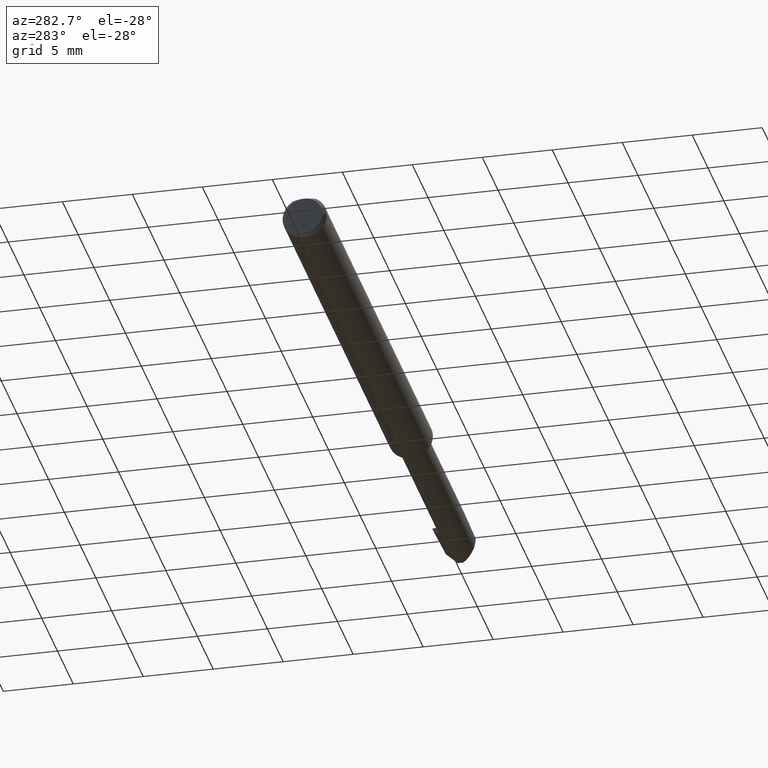
[diagram: clean part render]
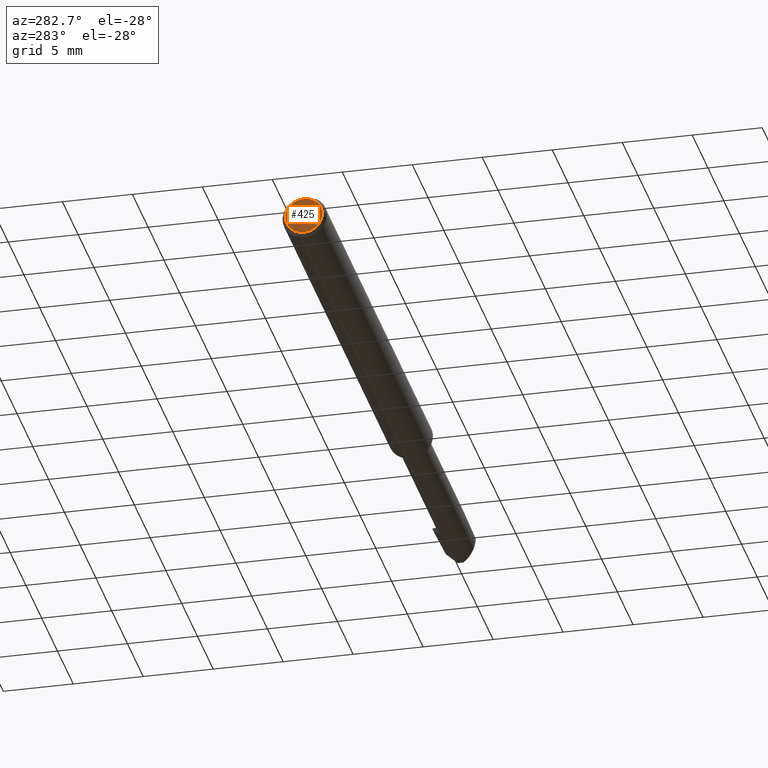
[diagram: same view with one face highlighted and labeled with its STEP entity id]
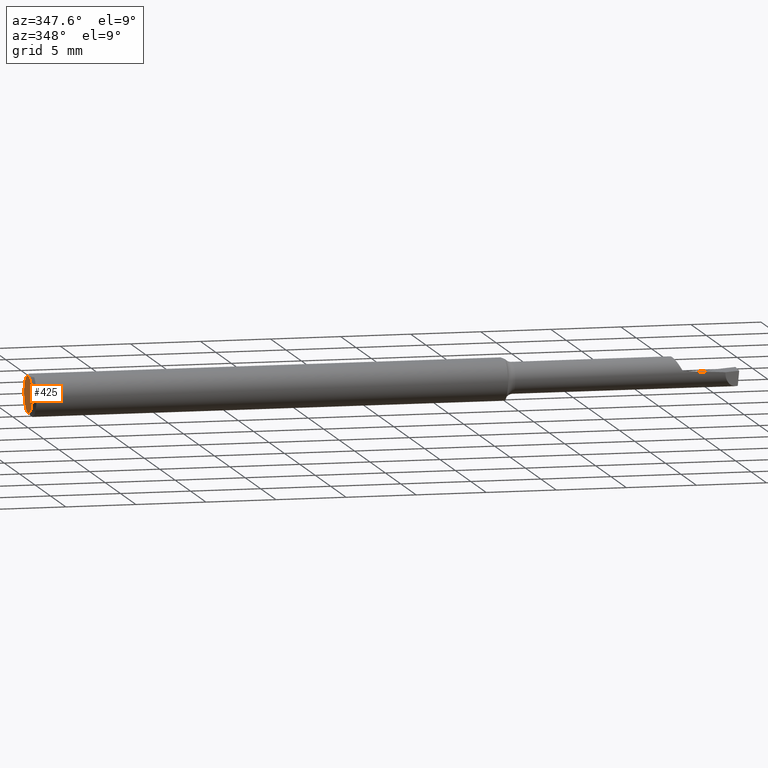
[diagram: same view with one face highlighted and labeled with its STEP entity id]
A machine part, auxiliary view. The second image highlights one B-rep face of the part: STEP entity #425.
A second angle (auxiliary view) of the same face is appended — the face is thin or edge-on in the first view.
In plain terms, the highlighted planar face has unit normal (1, 0, 0).
Its self-contained STEP definition (entity closure, byte-faithful):
#137 = VERTEX_POINT ( 'NONE', #215 ) ;
#187 = FACE_OUTER_BOUND ( 'NONE', #442, .T. ) ;
#191 = AXIS2_PLACEMENT_3D ( 'NONE', #310, #842, #245 ) ;
#215 = CARTESIAN_POINT ( 'NONE',  ( 0.000000000000000000, -5.426997665009263557E-18, 0.05234999999999997988 ) ) ;
#219 = AXIS2_PLACEMENT_3D ( 'NONE', #675, #743, #794 ) ;
#243 = ORIENTED_EDGE ( 'NONE', *, *, #532, .T. ) ;
#245 = DIRECTION ( 'NONE',  ( 0.000000000000000000, 0.000000000000000000, 1.000000000000000000 ) ) ;
#310 = CARTESIAN_POINT ( 'NONE',  ( 0.000000000000000000, 0.000000000000000000, 0.000000000000000000 ) ) ;
#348 = CIRCLE ( 'NONE', #493, 0.05234999999999996600 ) ;
#386 = PLANE ( 'NONE',  #219 ) ;
#407 = CIRCLE ( 'NONE', #191, 0.05234999999999996600 ) ;
#425 = ADVANCED_FACE ( 'NONE', ( #187 ), #386, .F. ) ;
#442 = EDGE_LOOP ( 'NONE', ( #243, #446 ) ) ;
#446 = ORIENTED_EDGE ( 'NONE', *, *, #683, .T. ) ;
#493 = AXIS2_PLACEMENT_3D ( 'NONE', #671, #606, #868 ) ;
#532 = EDGE_CURVE ( 'NONE', #137, #863, #407, .T. ) ;
#606 = DIRECTION ( 'NONE',  ( -1.000000000000000000, -0.000000000000000000, -0.000000000000000000 ) ) ;
#619 = CARTESIAN_POINT ( 'NONE',  ( 0.000000000000000000, 0.000000000000000000, -0.05234999999999996600 ) ) ;
#671 = CARTESIAN_POINT ( 'NONE',  ( 0.000000000000000000, 0.000000000000000000, 0.000000000000000000 ) ) ;
#675 = CARTESIAN_POINT ( 'NONE',  ( 0.000000000000000000, 0.000000000000000000, 0.000000000000000000 ) ) ;
#683 = EDGE_CURVE ( 'NONE', #863, #137, #348, .T. ) ;
#743 = DIRECTION ( 'NONE',  ( 1.000000000000000000, 0.000000000000000000, 0.000000000000000000 ) ) ;
#794 = DIRECTION ( 'NONE',  ( 0.000000000000000000, 0.000000000000000000, -1.000000000000000000 ) ) ;
#842 = DIRECTION ( 'NONE',  ( -1.000000000000000000, -0.000000000000000000, -0.000000000000000000 ) ) ;
#863 = VERTEX_POINT ( 'NONE', #619 ) ;
#868 = DIRECTION ( 'NONE',  ( 0.000000000000000000, 0.000000000000000000, 1.000000000000000000 ) ) ;